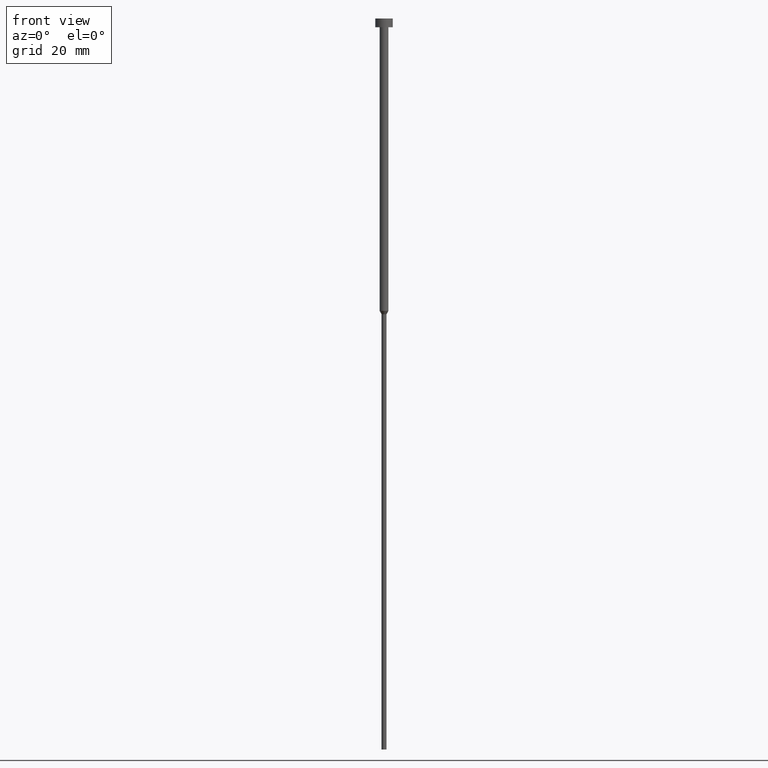
[diagram: clean part render]
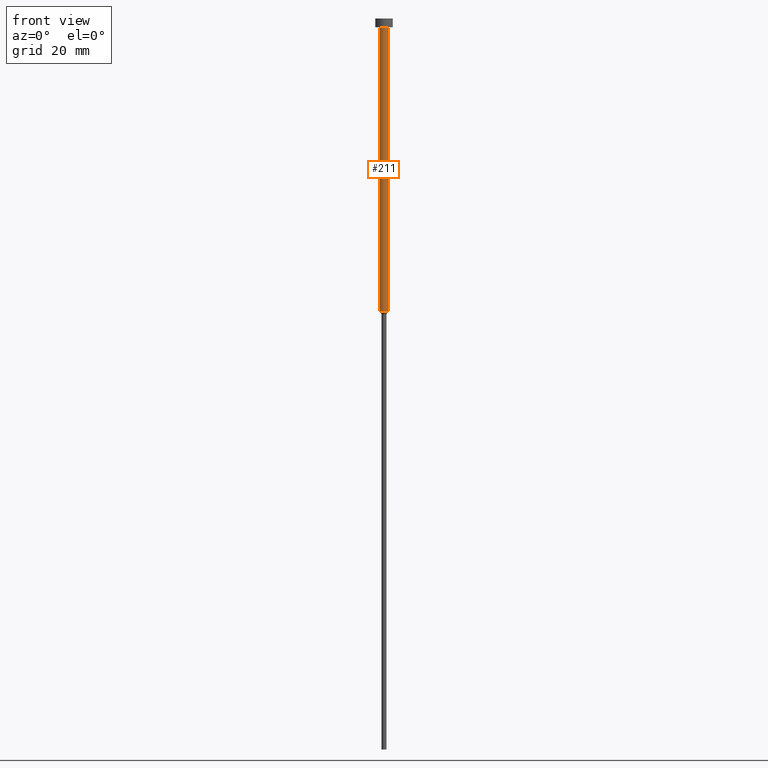
[diagram: same view with one face highlighted and labeled with its STEP entity id]
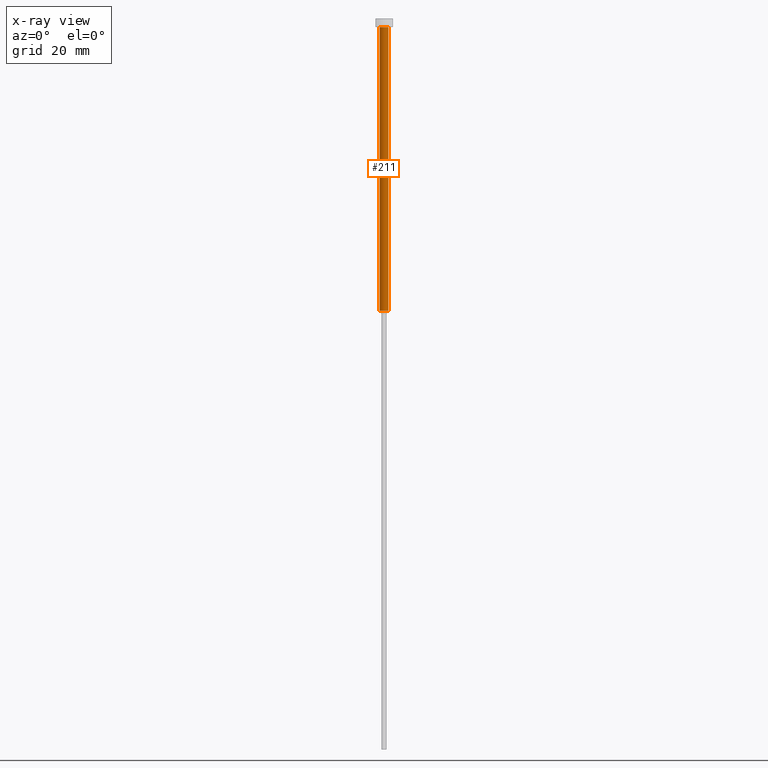
[diagram: x-ray of the same camera — body ghosted, the highlighted face saturated]
A machine part, front view. The second image highlights one B-rep face of the part: STEP entity #211.
The next image is the same camera in x-ray: the body ghosted, the highlighted face saturated — about 0% of this face is hidden behind the body in this view.
In plain terms, the highlighted cylindrical surface (edge-blend (fillet) strip) has radius 1.5 mm, axis along (-0, -0, 1).
Its self-contained STEP definition (entity closure, byte-faithful):
#2 = LINE ( 'NONE', #190, #108 ) ;
#17 = DIRECTION ( 'NONE',  ( -0.000000000000000000, -0.000000000000000000, 1.000000000000000000 ) ) ;
#18 = AXIS2_PLACEMENT_3D ( 'NONE', #105, #321, #162 ) ;
#20 = CARTESIAN_POINT ( 'NONE',  ( -1.500000000000000000, 1.836970198721029934E-16, -100.0000000000000000 ) ) ;
#43 = AXIS2_PLACEMENT_3D ( 'NONE', #140, #333, #224 ) ;
#59 = CYLINDRICAL_SURFACE ( 'NONE', #73, 1.500000000000000000 ) ;
#72 = EDGE_CURVE ( 'NONE', #101, #233, #141, .T. ) ;
#73 = AXIS2_PLACEMENT_3D ( 'NONE', #123, #17, #345 ) ;
#74 = ORIENTED_EDGE ( 'NONE', *, *, #84, .T. ) ;
#84 = EDGE_CURVE ( 'NONE', #205, #233, #187, .T. ) ;
#101 = VERTEX_POINT ( 'NONE', #218 ) ;
#105 = CARTESIAN_POINT ( 'NONE',  ( 0.000000000000000000, 0.000000000000000000, -3.000000000000000888 ) ) ;
#108 = VECTOR ( 'NONE', #274, 1000.000000000000000 ) ;
#121 = EDGE_LOOP ( 'NONE', ( #343, #176, #74, #277 ) ) ;
#123 = CARTESIAN_POINT ( 'NONE',  ( 0.000000000000000000, 0.000000000000000000, 0.000000000000000000 ) ) ;
#135 = CARTESIAN_POINT ( 'NONE',  ( 1.500000000000000000, 0.000000000000000000, -3.000000000000000888 ) ) ;
#140 = CARTESIAN_POINT ( 'NONE',  ( 0.000000000000000000, 0.000000000000000000, -100.0000000000000000 ) ) ;
#141 = CIRCLE ( 'NONE', #18, 1.500000000000000000 ) ;
#162 = DIRECTION ( 'NONE',  ( 1.000000000000000000, 0.000000000000000000, 0.000000000000000000 ) ) ;
#176 = ORIENTED_EDGE ( 'NONE', *, *, #312, .T. ) ;
#178 = VECTOR ( 'NONE', #182, 1000.000000000000000 ) ;
#182 = DIRECTION ( 'NONE',  ( -0.000000000000000000, -0.000000000000000000, 1.000000000000000000 ) ) ;
#187 = LINE ( 'NONE', #242, #178 ) ;
#188 = CARTESIAN_POINT ( 'NONE',  ( 1.500000000000000000, 0.000000000000000000, -100.0000000000000000 ) ) ;
#190 = CARTESIAN_POINT ( 'NONE',  ( -1.500000000000000000, 1.836970198721029934E-16, 0.000000000000000000 ) ) ;
#191 = VERTEX_POINT ( 'NONE', #20 ) ;
#205 = VERTEX_POINT ( 'NONE', #188 ) ;
#211 = ADVANCED_FACE ( 'NONE', ( #294 ), #59, .T. ) ;
#218 = CARTESIAN_POINT ( 'NONE',  ( -1.500000000000000000, 1.836970198721029934E-16, -3.000000000000000888 ) ) ;
#224 = DIRECTION ( 'NONE',  ( 1.000000000000000000, 0.000000000000000000, 0.000000000000000000 ) ) ;
#233 = VERTEX_POINT ( 'NONE', #135 ) ;
#242 = CARTESIAN_POINT ( 'NONE',  ( 1.500000000000000000, 0.000000000000000000, 0.000000000000000000 ) ) ;
#274 = DIRECTION ( 'NONE',  ( -0.000000000000000000, -0.000000000000000000, 1.000000000000000000 ) ) ;
#277 = ORIENTED_EDGE ( 'NONE', *, *, #72, .F. ) ;
#294 = FACE_OUTER_BOUND ( 'NONE', #121, .T. ) ;
#297 = EDGE_CURVE ( 'NONE', #191, #101, #2, .T. ) ;
#312 = EDGE_CURVE ( 'NONE', #191, #205, #353, .T. ) ;
#321 = DIRECTION ( 'NONE',  ( -0.000000000000000000, -0.000000000000000000, 1.000000000000000000 ) ) ;
#333 = DIRECTION ( 'NONE',  ( -0.000000000000000000, -0.000000000000000000, 1.000000000000000000 ) ) ;
#343 = ORIENTED_EDGE ( 'NONE', *, *, #297, .F. ) ;
#345 = DIRECTION ( 'NONE',  ( 1.000000000000000000, 0.000000000000000000, 0.000000000000000000 ) ) ;
#353 = CIRCLE ( 'NONE', #43, 1.500000000000000000 ) ;